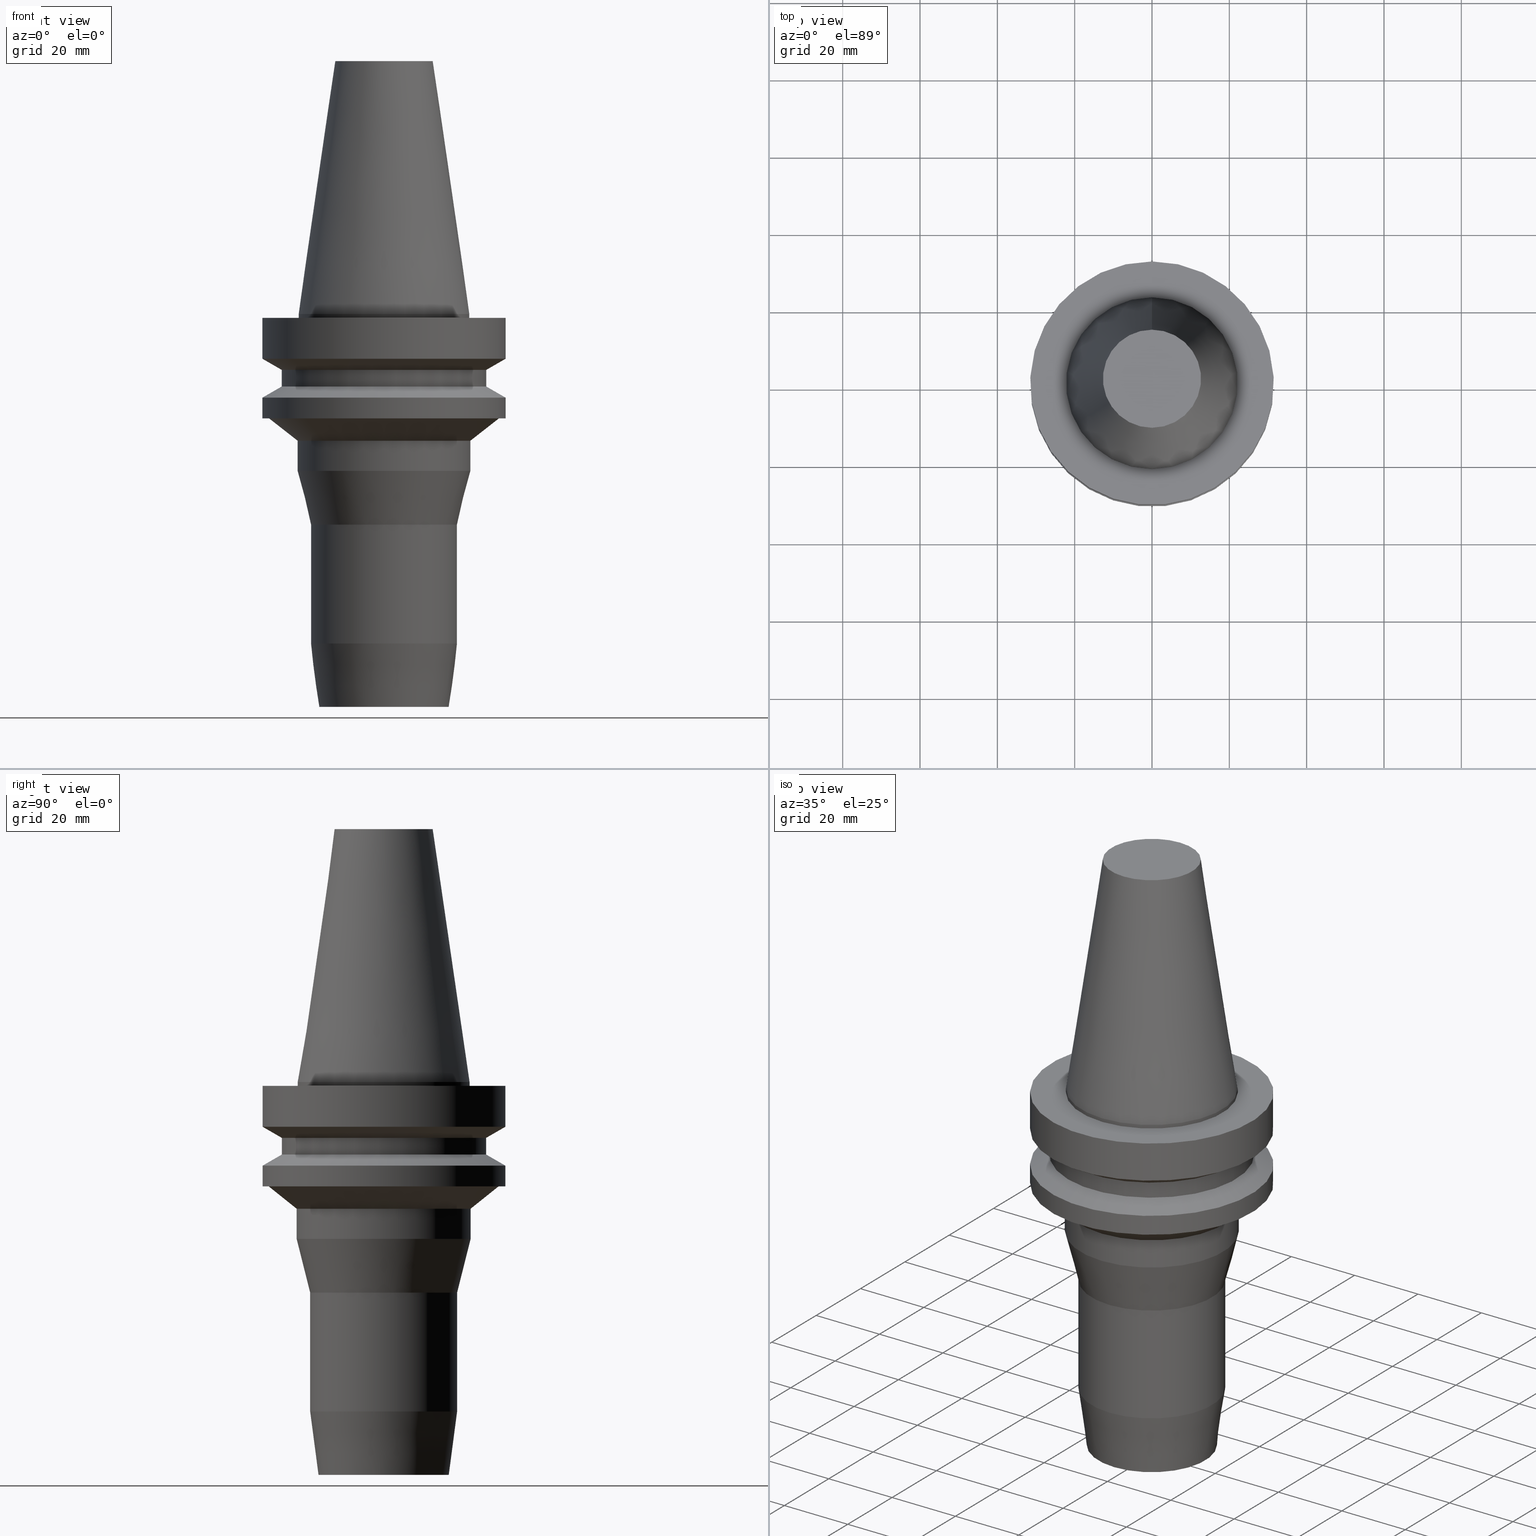
[diagram: canonical four-view strip — front | top / right | iso, engineering-drawing reading convention]
A machine part, canonical four-view strip (front | top / right | iso — engineering-drawing reading convention). The complete STEP part file that produces these views, byte-faithful:
ISO-10303-21;
HEADER;
FILE_DESCRIPTION((''),'1');
FILE_NAME('V:/90_\X2\53D65F9730C730FC30BF\X0\/00_\X2\6DE18DEF30C730FC30BF\X0\/ALL/BBT-BKUS\X2\FF76FF80FF9BFF78FF9E752852A05DE556F3\X0\201801/BBT40-HDC/BBT40-HDC.625-4.stp','2018-02-07T05:12:25',(''),(''),'Spatial Interop R21 SP3','Kubotek KeyCreator 2011 V10.0.2 (22737)',' ');
FILE_SCHEMA(('automotive_design'));
ENDSEC;
DATA;
#1=MECHANICAL_DESIGN_GEOMETRIC_PRESENTATION_REPRESENTATION(' ',(#10,#11,#12,#13,#14,#15,#16,#17,#18,#19,#20,#21,#22,#23,#24,#25,#26,#27,#28,#29,#30,#31,#32,#33,#34,#35,#36,#37,#38,#39,#40,#41),#6);
#2=PRODUCT_DEFINITION_CONTEXT('',#42,'design');
#3=APPLICATION_PROTOCOL_DEFINITION('INTERNATIONAL STANDARD','automotive_design',1994,#42);
#4=PRODUCT_CATEGORY_RELATIONSHIP('NONE','NONE',#43,#44);
#5=SHAPE_DEFINITION_REPRESENTATION(#45,#46);
#6= (GEOMETRIC_REPRESENTATION_CONTEXT(3)GLOBAL_UNCERTAINTY_ASSIGNED_CONTEXT((#49))GLOBAL_UNIT_ASSIGNED_CONTEXT((#51,#52,#53))REPRESENTATION_CONTEXT('NONE','WORKSPACE'));
#10=STYLED_ITEM('',(#55),#56);
#11=STYLED_ITEM('',(#57),#58);
#12=STYLED_ITEM('',(#59,#60),#61);
#13=STYLED_ITEM('',(#62,#63),#64);
#14=STYLED_ITEM('',(#65),#66);
#15=STYLED_ITEM('',(#67),#68);
#16=STYLED_ITEM('',(#69),#70);
#17=STYLED_ITEM('',(#71,#72),#73);
#18=STYLED_ITEM('',(#74,#75),#76);
#19=STYLED_ITEM('',(#77,#78),#79);
#20=STYLED_ITEM('',(#80,#81),#82);
#21=STYLED_ITEM('',(#83),#84);
#22=STYLED_ITEM('',(#85),#86);
#23=STYLED_ITEM('',(#87,#88),#89);
#24=STYLED_ITEM('',(#90,#91),#92);
#25=STYLED_ITEM('',(#93),#94);
#26=STYLED_ITEM('',(#95,#96),#97);
#27=STYLED_ITEM('',(#98),#99);
#28=STYLED_ITEM('',(#100,#101),#102);
#29=STYLED_ITEM('',(#103),#104);
#30=STYLED_ITEM('',(#105,#106),#107);
#31=STYLED_ITEM('',(#108),#109);
#32=STYLED_ITEM('',(#110),#111);
#33=STYLED_ITEM('',(#112,#113),#114);
#34=STYLED_ITEM('',(#115,#116),#117);
#35=STYLED_ITEM('',(#118,#119),#120);
#36=STYLED_ITEM('',(#121,#122),#123);
#37=STYLED_ITEM('',(#124),#125);
#38=STYLED_ITEM('',(#126),#127);
#39=STYLED_ITEM('',(#128,#129),#130);
#40=STYLED_ITEM('',(#131,#132),#133);
#41=STYLED_ITEM('',(#134),#135);
#42=APPLICATION_CONTEXT(' ');
#43=PRODUCT_CATEGORY('part','NONE');
#44=PRODUCT_RELATED_PRODUCT_CATEGORY('detail',' ',(#136));
#45=PRODUCT_DEFINITION_SHAPE('NONE','NONE',#137);
#46=ADVANCED_BREP_SHAPE_REPRESENTATION('Unnamed[1]',(#89,#138),#6);
#49=UNCERTAINTY_MEASURE_WITH_UNIT(LENGTH_MEASURE(1.0E-006),#51,'','');
#51= (CONVERSION_BASED_UNIT('MILLIMETRE',#141)LENGTH_UNIT()NAMED_UNIT(#144));
#52= (NAMED_UNIT(#146)PLANE_ANGLE_UNIT()SI_UNIT($,.RADIAN.));
#53= (NAMED_UNIT(#146)SOLID_ANGLE_UNIT()SI_UNIT($,.STERADIAN.));
#55=PRESENTATION_STYLE_ASSIGNMENT((#152));
#56=EDGE_CURVE('Unnamed[1]',#153,#153,#154,.T.);
#57=PRESENTATION_STYLE_ASSIGNMENT((#155));
#58=EDGE_CURVE('Unnamed[1]',#156,#156,#157,.T.);
#59=PRESENTATION_STYLE_ASSIGNMENT((#158));
#60=PRESENTATION_STYLE_ASSIGNMENT((#159));
#61=ADVANCED_FACE('Unnamed[1]',(#160,#161),#162,.T.);
#62=PRESENTATION_STYLE_ASSIGNMENT((#163));
#63=PRESENTATION_STYLE_ASSIGNMENT((#164));
#64=ADVANCED_FACE('Unnamed[1]',(#165),#166,.T.);
#65=PRESENTATION_STYLE_ASSIGNMENT((#167));
#66=EDGE_CURVE('Unnamed[1]',#168,#168,#169,.T.);
#67=PRESENTATION_STYLE_ASSIGNMENT((#170));
#68=EDGE_CURVE('Unnamed[1]',#171,#171,#172,.T.);
#69=PRESENTATION_STYLE_ASSIGNMENT((#173));
#70=EDGE_CURVE('Unnamed[1]',#174,#174,#175,.T.);
#71=PRESENTATION_STYLE_ASSIGNMENT((#176));
#72=PRESENTATION_STYLE_ASSIGNMENT((#177));
#73=ADVANCED_FACE('Unnamed[1]',(#178,#179),#180,.T.);
#74=PRESENTATION_STYLE_ASSIGNMENT((#181));
#75=PRESENTATION_STYLE_ASSIGNMENT((#182));
#76=ADVANCED_FACE('Unnamed[1]',(#183,#184),#185,.T.);
#77=PRESENTATION_STYLE_ASSIGNMENT((#186));
#78=PRESENTATION_STYLE_ASSIGNMENT((#187));
#79=ADVANCED_FACE('Unnamed[1]',(#188,#189),#190,.T.);
#80=PRESENTATION_STYLE_ASSIGNMENT((#191));
#81=PRESENTATION_STYLE_ASSIGNMENT((#192));
#82=ADVANCED_FACE('Unnamed[1]',(#193,#194),#195,.T.);
#83=PRESENTATION_STYLE_ASSIGNMENT((#196));
#84=EDGE_CURVE('Unnamed[1]',#197,#197,#198,.T.);
#85=PRESENTATION_STYLE_ASSIGNMENT((#199));
#86=EDGE_CURVE('Unnamed[1]',#200,#200,#201,.T.);
#87=PRESENTATION_STYLE_ASSIGNMENT((#202));
#88=PRESENTATION_STYLE_ASSIGNMENT((#203));
#89=MANIFOLD_SOLID_BREP('Unnamed[1]',#204);
#90=PRESENTATION_STYLE_ASSIGNMENT((#205));
#91=PRESENTATION_STYLE_ASSIGNMENT((#206));
#92=ADVANCED_FACE('Unnamed[1]',(#207,#208),#209,.T.);
#93=PRESENTATION_STYLE_ASSIGNMENT((#210));
#94=EDGE_CURVE('Unnamed[1]',#211,#211,#212,.T.);
#95=PRESENTATION_STYLE_ASSIGNMENT((#213));
#96=PRESENTATION_STYLE_ASSIGNMENT((#214));
#97=ADVANCED_FACE('Unnamed[1]',(#215,#216),#217,.T.);
#98=PRESENTATION_STYLE_ASSIGNMENT((#218));
#99=EDGE_CURVE('Unnamed[1]',#219,#219,#220,.T.);
#100=PRESENTATION_STYLE_ASSIGNMENT((#221));
#101=PRESENTATION_STYLE_ASSIGNMENT((#222));
#102=ADVANCED_FACE('Unnamed[1]',(#223,#224),#225,.T.);
#103=PRESENTATION_STYLE_ASSIGNMENT((#226));
#104=EDGE_CURVE('Unnamed[1]',#227,#227,#228,.T.);
#105=PRESENTATION_STYLE_ASSIGNMENT((#229));
#106=PRESENTATION_STYLE_ASSIGNMENT((#230));
#107=ADVANCED_FACE('Unnamed[1]',(#231,#232),#233,.T.);
#108=PRESENTATION_STYLE_ASSIGNMENT((#234));
#109=EDGE_CURVE('Unnamed[1]',#235,#235,#236,.T.);
#110=PRESENTATION_STYLE_ASSIGNMENT((#237));
#111=EDGE_CURVE('Unnamed[1]',#238,#238,#239,.T.);
#112=PRESENTATION_STYLE_ASSIGNMENT((#240));
#113=PRESENTATION_STYLE_ASSIGNMENT((#241));
#114=ADVANCED_FACE('Unnamed[1]',(#242,#243),#244,.T.);
#115=PRESENTATION_STYLE_ASSIGNMENT((#245));
#116=PRESENTATION_STYLE_ASSIGNMENT((#246));
#117=ADVANCED_FACE('Unnamed[1]',(#247,#248),#249,.T.);
#118=PRESENTATION_STYLE_ASSIGNMENT((#250));
#119=PRESENTATION_STYLE_ASSIGNMENT((#251));
#120=ADVANCED_FACE('Unnamed[1]',(#252,#253),#254,.T.);
#121=PRESENTATION_STYLE_ASSIGNMENT((#255));
#122=PRESENTATION_STYLE_ASSIGNMENT((#256));
#123=ADVANCED_FACE('Unnamed[1]',(#257),#258,.T.);
#124=PRESENTATION_STYLE_ASSIGNMENT((#259));
#125=EDGE_CURVE('Unnamed[1]',#260,#260,#261,.T.);
#126=PRESENTATION_STYLE_ASSIGNMENT((#262));
#127=EDGE_CURVE('Unnamed[1]',#263,#263,#264,.T.);
#128=PRESENTATION_STYLE_ASSIGNMENT((#265));
#129=PRESENTATION_STYLE_ASSIGNMENT((#266));
#130=ADVANCED_FACE('Unnamed[1]',(#267,#268),#269,.T.);
#131=PRESENTATION_STYLE_ASSIGNMENT((#270));
#132=PRESENTATION_STYLE_ASSIGNMENT((#271));
#133=ADVANCED_FACE('Unnamed[1]',(#272,#273),#274,.T.);
#134=PRESENTATION_STYLE_ASSIGNMENT((#275));
#135=EDGE_CURVE('Unnamed[1]',#276,#276,#277,.T.);
#136=PRODUCT('Unnamed[1]','Unnamed[1]','PART-Unnamed[1]-DESC',(#278));
#137=PRODUCT_DEFINITION('NONE','NONE',#279,#2);
#138=AXIS2_PLACEMENT_3D('',#280,#281,#282);
#141=LENGTH_MEASURE_WITH_UNIT(LENGTH_MEASURE(1.0),#283);
#144=DIMENSIONAL_EXPONENTS(1.0,0.0,0.0,0.0,0.0,0.0,0.0);
#146=DIMENSIONAL_EXPONENTS(0.0,0.0,0.0,0.0,0.0,0.0,0.0);
#152=CURVE_STYLE('',#284,POSITIVE_LENGTH_MEASURE(1000.0),#285);
#153=VERTEX_POINT('',#286);
#154=CIRCLE('',#287,26.4999999999994);
#155=CURVE_STYLE('',#288,POSITIVE_LENGTH_MEASURE(1000.0),#289);
#156=VERTEX_POINT('',#290);
#157=CIRCLE('',#291,31.5000000000006);
#158=SURFACE_STYLE_USAGE(.BOTH.,#292);
#159=CURVE_STYLE('',#293,POSITIVE_LENGTH_MEASURE(1000.0),#294);
#160=FACE_BOUND('',#295,.T.);
#161=FACE_BOUND('',#296,.T.);
#162=CYLINDRICAL_SURFACE('',#297,26.4999999999997);
#163=SURFACE_STYLE_USAGE(.BOTH.,#298);
#164=CURVE_STYLE('',#299,POSITIVE_LENGTH_MEASURE(1000.0),#300);
#165=FACE_OUTER_BOUND('',#301,.T.);
#166=PLANE('',#302);
#167=CURVE_STYLE('',#303,POSITIVE_LENGTH_MEASURE(1000.0),#304);
#168=VERTEX_POINT('',#305);
#169=CIRCLE('',#306,22.225);
#170=CURVE_STYLE('',#307,POSITIVE_LENGTH_MEASURE(1000.0),#308);
#171=VERTEX_POINT('',#309);
#172=CIRCLE('',#310,31.5000000000003);
#173=CURVE_STYLE('',#311,POSITIVE_LENGTH_MEASURE(1000.0),#312);
#174=VERTEX_POINT('',#313);
#175=CIRCLE('',#314,19.0000000000008);
#176=SURFACE_STYLE_USAGE(.BOTH.,#315);
#177=CURVE_STYLE('',#316,POSITIVE_LENGTH_MEASURE(1000.0),#317);
#178=FACE_BOUND('',#318,.T.);
#179=FACE_BOUND('',#319,.T.);
#180=CYLINDRICAL_SURFACE('',#320,31.5000000000005);
#181=SURFACE_STYLE_USAGE(.BOTH.,#321);
#182=CURVE_STYLE('',#322,POSITIVE_LENGTH_MEASURE(1000.0),#323);
#183=FACE_BOUND('',#324,.T.);
#184=FACE_BOUND('',#325,.T.);
#185=CYLINDRICAL_SURFACE('',#326,19.000000000003);
#186=SURFACE_STYLE_USAGE(.BOTH.,#327);
#187=CURVE_STYLE('',#328,POSITIVE_LENGTH_MEASURE(1000.0),#329);
#188=FACE_BOUND('',#330,.T.);
#189=FACE_OUTER_BOUND('',#331,.T.);
#190=PLANE('',#332);
#191=SURFACE_STYLE_USAGE(.BOTH.,#333);
#192=CURVE_STYLE('',#334,POSITIVE_LENGTH_MEASURE(1000.0),#335);
#193=FACE_BOUND('',#336,.T.);
#194=FACE_BOUND('',#337,.T.);
#195=CONICAL_SURFACE('',#338,20.7500000000019,0.246318137964247);
#196=CURVE_STYLE('',#339,POSITIVE_LENGTH_MEASURE(1000.0),#340);
#197=VERTEX_POINT('',#341);
#198=CIRCLE('',#342,22.225);
#199=CURVE_STYLE('',#343,POSITIVE_LENGTH_MEASURE(1000.0),#344);
#200=VERTEX_POINT('',#345);
#201=CIRCLE('',#346,16.8455306051989);
#202=SURFACE_STYLE_USAGE(.BOTH.,#347);
#203=CURVE_STYLE('',#348,POSITIVE_LENGTH_MEASURE(1000.0),#349);
#204=CLOSED_SHELL('',(#64,#130,#92,#107,#114,#117,#61,#102,#73,#79,#120,#133,#82,#76,#97,#123));
#205=SURFACE_STYLE_USAGE(.BOTH.,#350);
#206=CURVE_STYLE('',#351,POSITIVE_LENGTH_MEASURE(1000.0),#352);
#207=FACE_BOUND('',#353,.T.);
#208=FACE_BOUND('',#354,.T.);
#209=CYLINDRICAL_SURFACE('',#355,22.225);
#210=CURVE_STYLE('',#356,POSITIVE_LENGTH_MEASURE(1000.0),#357);
#211=VERTEX_POINT('',#358);
#212=CIRCLE('',#359,29.7143593539462);
#213=SURFACE_STYLE_USAGE(.BOTH.,#360);
#214=CURVE_STYLE('',#361,POSITIVE_LENGTH_MEASURE(1000.0),#362);
#215=FACE_BOUND('',#363,.T.);
#216=FACE_BOUND('',#364,.T.);
#217=CONICAL_SURFACE('',#365,17.9227653025998,0.130899693899571);
#218=CURVE_STYLE('',#366,POSITIVE_LENGTH_MEASURE(1000.0),#367);
#219=VERTEX_POINT('',#368);
#220=CIRCLE('',#369,26.4999999999999);
#221=SURFACE_STYLE_USAGE(.BOTH.,#370);
#222=CURVE_STYLE('',#371,POSITIVE_LENGTH_MEASURE(1000.0),#372);
#223=FACE_BOUND('',#373,.T.);
#224=FACE_BOUND('',#374,.T.);
#225=CONICAL_SURFACE('',#375,29.0000000000003,1.04719755119651);
#226=CURVE_STYLE('',#376,POSITIVE_LENGTH_MEASURE(1000.0),#377);
#227=VERTEX_POINT('',#378);
#228=CIRCLE('',#379,19.0000000000052);
#229=SURFACE_STYLE_USAGE(.BOTH.,#380);
#230=CURVE_STYLE('',#381,POSITIVE_LENGTH_MEASURE(1000.0),#382);
#231=FACE_OUTER_BOUND('',#383,.T.);
#232=FACE_BOUND('',#384,.T.);
#233=PLANE('',#385);
#234=CURVE_STYLE('',#386,POSITIVE_LENGTH_MEASURE(1000.0),#387);
#235=VERTEX_POINT('',#388);
#236=CIRCLE('',#389,31.5000000000003);
#237=CURVE_STYLE('',#390,POSITIVE_LENGTH_MEASURE(1000.0),#391);
#238=VERTEX_POINT('',#392);
#239=CIRCLE('',#393,22.499999999999);
#240=SURFACE_STYLE_USAGE(.BOTH.,#394);
#241=CURVE_STYLE('',#395,POSITIVE_LENGTH_MEASURE(1000.0),#396);
#242=FACE_BOUND('',#397,.T.);
#243=FACE_BOUND('',#398,.T.);
#244=CYLINDRICAL_SURFACE('',#399,31.5);
#245=SURFACE_STYLE_USAGE(.BOTH.,#400);
#246=CURVE_STYLE('',#401,POSITIVE_LENGTH_MEASURE(1000.0),#402);
#247=FACE_BOUND('',#403,.T.);
#248=FACE_BOUND('',#404,.T.);
#249=CONICAL_SURFACE('',#405,28.9999999999998,1.04719755119657);
#250=SURFACE_STYLE_USAGE(.BOTH.,#406);
#251=CURVE_STYLE('',#407,POSITIVE_LENGTH_MEASURE(1000.0),#408);
#252=FACE_BOUND('',#409,.T.);
#253=FACE_BOUND('',#410,.T.);
#254=CONICAL_SURFACE('',#411,26.1071796769726,0.895885082770145);
#255=SURFACE_STYLE_USAGE(.BOTH.,#412);
#256=CURVE_STYLE('',#413,POSITIVE_LENGTH_MEASURE(1000.0),#414);
#257=FACE_OUTER_BOUND('',#415,.T.);
#258=PLANE('',#416);
#259=CURVE_STYLE('',#417,POSITIVE_LENGTH_MEASURE(1000.0),#418);
#260=VERTEX_POINT('',#419);
#261=CIRCLE('',#420,12.6875000000001);
#262=CURVE_STYLE('',#421,POSITIVE_LENGTH_MEASURE(1000.0),#422);
#263=VERTEX_POINT('',#423);
#264=CIRCLE('',#424,31.4999999999996);
#265=SURFACE_STYLE_USAGE(.BOTH.,#425);
#266=CURVE_STYLE('',#426,POSITIVE_LENGTH_MEASURE(1000.0),#427);
#267=FACE_BOUND('',#428,.T.);
#268=FACE_BOUND('',#429,.T.);
#269=CONICAL_SURFACE('',#430,17.45625,0.144812498238936);
#270=SURFACE_STYLE_USAGE(.BOTH.,#431);
#271=CURVE_STYLE('',#432,POSITIVE_LENGTH_MEASURE(1000.0),#433);
#272=FACE_BOUND('',#434,.T.);
#273=FACE_BOUND('',#435,.T.);
#274=CYLINDRICAL_SURFACE('',#436,22.4999999999988);
#275=CURVE_STYLE('',#437,POSITIVE_LENGTH_MEASURE(1000.0),#438);
#276=VERTEX_POINT('',#439);
#277=CIRCLE('',#440,22.4999999999985);
#278=PRODUCT_CONTEXT('',#42,'mechanical');
#279=PRODUCT_DEFINITION_FORMATION_WITH_SPECIFIED_SOURCE(' ','NONE',#136,.NOT_KNOWN.);
#280=CARTESIAN_POINT('',(0.0,0.0,0.0));
#281=DIRECTION('',(0.0,0.0,1.0));
#282=DIRECTION('',(1.0,0.0,0.0));
#283= (NAMED_UNIT(#144)LENGTH_UNIT()SI_UNIT(.MILLI.,.METRE.));
#284=DRAUGHTING_PRE_DEFINED_CURVE_FONT('continuous');
#285=COLOUR_RGB('',0.0,1.0,0.0);
#286=CARTESIAN_POINT('',(8.8494551369045E-016,26.4999999999995,-14.4522569986152));
#287=AXIS2_PLACEMENT_3D('',#442,#443,#444);
#288=DRAUGHTING_PRE_DEFINED_CURVE_FONT('continuous');
#289=COLOUR_RGB('',0.0,1.0,0.0);
#290=CARTESIAN_POINT('',(1.32473071268174E-015,31.5000000000007,-21.6344943473346));
#291=AXIS2_PLACEMENT_3D('',#445,#446,#447);
#292=SURFACE_SIDE_STYLE('',(#448));
#293=DRAUGHTING_PRE_DEFINED_CURVE_FONT('continuous');
#294=COLOUR_RGB('',0.0,1.0,0.0);
#295=EDGE_LOOP('',(#449));
#296=EDGE_LOOP('',(#450));
#297=AXIS2_PLACEMENT_3D('',#451,#452,#453);
#298=SURFACE_SIDE_STYLE('',(#454));
#299=DRAUGHTING_PRE_DEFINED_CURVE_FONT('continuous');
#300=COLOUR_RGB('',0.0,1.0,0.0);
#301=EDGE_LOOP('',(#455));
#302=AXIS2_PLACEMENT_3D('',#456,#457,#458);
#303=DRAUGHTING_PRE_DEFINED_CURVE_FONT('continuous');
#304=COLOUR_RGB('',0.0,1.0,0.0);
#305=CARTESIAN_POINT('',(1.71319921032766E-029,22.2250000000001,-2.8153873565375E-013));
#306=AXIS2_PLACEMENT_3D('',#459,#460,#461);
#307=DRAUGHTING_PRE_DEFINED_CURVE_FONT('continuous');
#308=COLOUR_RGB('',0.0,1.0,0.0);
#309=CARTESIAN_POINT('',(1.65327317884891E-015,31.5000000000004,-26.9999999999998));
#310=AXIS2_PLACEMENT_3D('',#462,#463,#464);
#311=DRAUGHTING_PRE_DEFINED_CURVE_FONT('continuous');
#312=COLOUR_RGB('',0.0,1.0,0.0);
#313=CARTESIAN_POINT('',(5.219149532397E-015,19.0000000000009,-85.2351802336931));
#314=AXIS2_PLACEMENT_3D('',#465,#466,#467);
#315=SURFACE_SIDE_STYLE('',(#468));
#316=DRAUGHTING_PRE_DEFINED_CURVE_FONT('continuous');
#317=COLOUR_RGB('',0.0,1.0,0.0);
#318=EDGE_LOOP('',(#469));
#319=EDGE_LOOP('',(#470));
#320=AXIS2_PLACEMENT_3D('',#471,#472,#473);
#321=SURFACE_SIDE_STYLE('',(#474));
#322=DRAUGHTING_PRE_DEFINED_CURVE_FONT('continuous');
#323=COLOUR_RGB('',0.0,1.0,0.0);
#324=EDGE_LOOP('',(#475));
#325=EDGE_LOOP('',(#476));
#326=AXIS2_PLACEMENT_3D('',#477,#478,#479);
#327=SURFACE_SIDE_STYLE('',(#480));
#328=DRAUGHTING_PRE_DEFINED_CURVE_FONT('continuous');
#329=COLOUR_RGB('',0.0,1.0,0.0);
#330=EDGE_LOOP('',(#481));
#331=EDGE_LOOP('',(#482));
#332=AXIS2_PLACEMENT_3D('',#483,#484,#485);
#333=SURFACE_SIDE_STYLE('',(#486));
#334=DRAUGHTING_PRE_DEFINED_CURVE_FONT('continuous');
#335=COLOUR_RGB('',0.0,1.0,0.0);
#336=EDGE_LOOP('',(#487));
#337=EDGE_LOOP('',(#488));
#338=AXIS2_PLACEMENT_3D('',#489,#490,#491);
#339=DRAUGHTING_PRE_DEFINED_CURVE_FONT('continuous');
#340=COLOUR_RGB('',0.0,1.0,0.0);
#341=CARTESIAN_POINT('',(6.12323399573622E-017,22.2250000000001,-0.999999999999912));
#342=AXIS2_PLACEMENT_3D('',#492,#493,#494);
#343=DRAUGHTING_PRE_DEFINED_CURVE_FONT('continuous');
#344=COLOUR_RGB('',0.0,1.0,0.0);
#345=CARTESIAN_POINT('',(6.2212057396686E-015,16.845530605199,-101.600000000001));
#346=AXIS2_PLACEMENT_3D('',#495,#496,#497);
#347=SURFACE_SIDE_STYLE('',(#498));
#348=DRAUGHTING_PRE_DEFINED_CURVE_FONT('continuous');
#349=COLOUR_RGB('',0.0,1.0,0.0);
#350=SURFACE_SIDE_STYLE('',(#499));
#351=DRAUGHTING_PRE_DEFINED_CURVE_FONT('continuous');
#352=COLOUR_RGB('',0.0,1.0,0.0);
#353=EDGE_LOOP('',(#500));
#354=EDGE_LOOP('',(#501));
#355=AXIS2_PLACEMENT_3D('',#502,#503,#504);
#356=DRAUGHTING_PRE_DEFINED_CURVE_FONT('continuous');
#357=COLOUR_RGB('',0.0,1.0,0.0);
#358=CARTESIAN_POINT('',(1.65327317884891E-015,29.7143593539463,-26.9999999999998));
#359=AXIS2_PLACEMENT_3D('',#505,#506,#507);
#360=SURFACE_SIDE_STYLE('',(#508));
#361=DRAUGHTING_PRE_DEFINED_CURVE_FONT('continuous');
#362=COLOUR_RGB('',0.0,1.0,0.0);
#363=EDGE_LOOP('',(#509));
#364=EDGE_LOOP('',(#510));
#365=AXIS2_PLACEMENT_3D('',#511,#512,#513);
#366=DRAUGHTING_PRE_DEFINED_CURVE_FONT('continuous');
#367=COLOUR_RGB('',0.0,1.0,0.0);
#368=CARTESIAN_POINT('',(1.1479681728942E-015,26.5,-18.7477430013855));
#369=AXIS2_PLACEMENT_3D('',#514,#515,#516);
#370=SURFACE_SIDE_STYLE('',(#517));
#371=DRAUGHTING_PRE_DEFINED_CURVE_FONT('continuous');
#372=COLOUR_RGB('',0.0,1.0,0.0);
#373=EDGE_LOOP('',(#518));
#374=EDGE_LOOP('',(#519));
#375=AXIS2_PLACEMENT_3D('',#520,#521,#522);
#376=DRAUGHTING_PRE_DEFINED_CURVE_FONT('continuous');
#377=COLOUR_RGB('',0.0,1.0,0.0);
#378=CARTESIAN_POINT('',(3.3363421698747E-015,19.0000000000053,-54.4866025403829));
#379=AXIS2_PLACEMENT_3D('',#523,#524,#525);
#380=SURFACE_SIDE_STYLE('',(#526));
#381=DRAUGHTING_PRE_DEFINED_CURVE_FONT('continuous');
#382=COLOUR_RGB('',0.0,1.0,0.0);
#383=EDGE_LOOP('',(#527));
#384=EDGE_LOOP('',(#528));
#385=AXIS2_PLACEMENT_3D('',#529,#530,#531);
#386=DRAUGHTING_PRE_DEFINED_CURVE_FONT('continuous');
#387=COLOUR_RGB('',0.0,1.0,0.0);
#388=CARTESIAN_POINT('',(7.08182973902924E-016,31.5000000000004,-11.5655056526664));
#389=AXIS2_PLACEMENT_3D('',#532,#533,#534);
#390=DRAUGHTING_PRE_DEFINED_CURVE_FONT('continuous');
#391=COLOUR_RGB('',0.0,1.0,0.0);
#392=CARTESIAN_POINT('',(2.00679825842386E-015,22.4999999999991,-32.7735026918956));
#393=AXIS2_PLACEMENT_3D('',#535,#536,#537);
#394=SURFACE_SIDE_STYLE('',(#538));
#395=DRAUGHTING_PRE_DEFINED_CURVE_FONT('continuous');
#396=COLOUR_RGB('',0.0,1.0,0.0);
#397=EDGE_LOOP('',(#539));
#398=EDGE_LOOP('',(#540));
#399=AXIS2_PLACEMENT_3D('',#541,#542,#543);
#400=SURFACE_SIDE_STYLE('',(#544));
#401=DRAUGHTING_PRE_DEFINED_CURVE_FONT('continuous');
#402=COLOUR_RGB('',0.0,1.0,0.0);
#403=EDGE_LOOP('',(#545));
#404=EDGE_LOOP('',(#546));
#405=AXIS2_PLACEMENT_3D('',#547,#548,#549);
#406=SURFACE_SIDE_STYLE('',(#550));
#407=DRAUGHTING_PRE_DEFINED_CURVE_FONT('continuous');
#408=COLOUR_RGB('',0.0,1.0,0.0);
#409=EDGE_LOOP('',(#551));
#410=EDGE_LOOP('',(#552));
#411=AXIS2_PLACEMENT_3D('',#553,#554,#555);
#412=SURFACE_SIDE_STYLE('',(#556));
#413=DRAUGHTING_PRE_DEFINED_CURVE_FONT('continuous');
#414=COLOUR_RGB('',0.0,1.0,0.0);
#415=EDGE_LOOP('',(#557));
#416=AXIS2_PLACEMENT_3D('',#558,#559,#560);
#417=DRAUGHTING_PRE_DEFINED_CURVE_FONT('continuous');
#418=COLOUR_RGB('',0.0,1.0,0.0);
#419=CARTESIAN_POINT('',(-4.00459503321185E-015,12.6875000000002,65.4000000000001));
#420=AXIS2_PLACEMENT_3D('',#561,#562,#563);
#421=DRAUGHTING_PRE_DEFINED_CURVE_FONT('continuous');
#422=COLOUR_RGB('',0.0,1.0,0.0);
#423=CARTESIAN_POINT('',(6.12323399573568E-017,31.4999999999997,-0.999999999999825));
#424=AXIS2_PLACEMENT_3D('',#564,#565,#566);
#425=SURFACE_SIDE_STYLE('',(#567));
#426=DRAUGHTING_PRE_DEFINED_CURVE_FONT('continuous');
#427=COLOUR_RGB('',0.0,1.0,0.0);
#428=EDGE_LOOP('',(#568));
#429=EDGE_LOOP('',(#569));
#430=AXIS2_PLACEMENT_3D('',#570,#571,#572);
#431=SURFACE_SIDE_STYLE('',(#573));
#432=DRAUGHTING_PRE_DEFINED_CURVE_FONT('continuous');
#433=COLOUR_RGB('',0.0,1.0,0.0);
#434=EDGE_LOOP('',(#574));
#435=EDGE_LOOP('',(#575));
#436=AXIS2_PLACEMENT_3D('',#576,#577,#578);
#437=DRAUGHTING_PRE_DEFINED_CURVE_FONT('continuous');
#438=COLOUR_RGB('',0.0,1.0,0.0);
#439=CARTESIAN_POINT('',(2.48394354653096E-015,22.4999999999986,-40.565876598222));
#440=AXIS2_PLACEMENT_3D('',#579,#580,#581);
#442=CARTESIAN_POINT('',(8.8494551369045E-016,8.70698910273809E-014,-14.4522569986152));
#443=DIRECTION('',(6.12323399573676E-017,1.22464679914767E-016,-1.0));
#444=DIRECTION('',(-1.23259516440786E-032,1.0,1.22464679914767E-016));
#445=CARTESIAN_POINT('',(1.32473071268174E-015,8.79494614253635E-014,-21.6344943473346));
#446=DIRECTION('',(6.12323399573677E-017,1.22464679914768E-016,-1.0));
#447=DIRECTION('',(-1.23259516440781E-032,1.0,1.22464679914768E-016));
#448=SURFACE_STYLE_FILL_AREA(#582);
#449=ORIENTED_EDGE('',*,*,#99,.F.);
#450=ORIENTED_EDGE('',*,*,#56,.T.);
#451=CARTESIAN_POINT('',(1.01645684329232E-015,8.73329136865847E-014,-16.6000000000004));
#452=DIRECTION('',(6.12323399573677E-017,1.22464679914766E-016,-1.0));
#453=DIRECTION('',(-1.23259516440785E-032,1.0,1.22464679914766E-016));
#454=SURFACE_STYLE_FILL_AREA(#583);
#455=ORIENTED_EDGE('',*,*,#125,.F.);
#456=CARTESIAN_POINT('',(-4.00459503321185E-015,6.34375000000014,65.4000000000001));
#457=DIRECTION('',(-6.12323399573677E-017,9.97602686800683E-016,1.0));
#458=DIRECTION('',(-5.62583941297938E-032,-1.0,9.97602686800683E-016));
#459=CARTESIAN_POINT('',(1.74032777401202E-029,8.53E-014,-2.8421709430404E-013));
#460=DIRECTION('',(6.12323399573677E-017,1.22464679914758E-016,-1.0));
#461=DIRECTION('',(-1.23259516440816E-032,1.0,1.22464679914758E-016));
#462=CARTESIAN_POINT('',(1.65327317884891E-015,8.86065463576978E-014,-26.9999999999998));
#463=DIRECTION('',(6.12323399573677E-017,1.22464679914769E-016,-1.0));
#464=DIRECTION('',(-1.23259516440782E-032,1.0,1.22464679914769E-016));
#465=CARTESIAN_POINT('',(5.219149532397E-015,9.5738299064794E-014,-85.2351802336931));
#466=DIRECTION('',(6.12323399573677E-017,1.22464679914745E-016,-1.0));
#467=DIRECTION('',(-1.23259516440778E-032,1.0,1.22464679914745E-016));
#468=SURFACE_STYLE_FILL_AREA(#584);
#469=ORIENTED_EDGE('',*,*,#68,.F.);
#470=ORIENTED_EDGE('',*,*,#58,.T.);
#471=CARTESIAN_POINT('',(1.48900194576533E-015,8.82780038915307E-014,-24.3172471736672));
#472=DIRECTION('',(6.12323399573677E-017,1.22464679914768E-016,-1.0));
#473=DIRECTION('',(-1.23259516440781E-032,1.0,1.22464679914768E-016));
#474=SURFACE_STYLE_FILL_AREA(#585);
#475=ORIENTED_EDGE('',*,*,#70,.F.);
#476=ORIENTED_EDGE('',*,*,#104,.T.);
#477=CARTESIAN_POINT('',(4.27774585113585E-015,9.38554917022717E-014,-69.860891387038));
#478=DIRECTION('',(6.12323399573677E-017,1.2246467991473E-016,-1.0));
#479=DIRECTION('',(-1.23259516440764E-032,1.0,1.2246467991473E-016));
#480=SURFACE_STYLE_FILL_AREA(#586);
#481=ORIENTED_EDGE('',*,*,#94,.F.);
#482=ORIENTED_EDGE('',*,*,#68,.T.);
#483=CARTESIAN_POINT('',(1.65327317884891E-015,30.6071796769733,-26.9999999999998));
#484=DIRECTION('',(6.12323399573677E-017,6.09126980313703E-015,-1.0));
#485=DIRECTION('',(-3.77809856088504E-031,1.0,6.09126980313703E-015));
#486=SURFACE_STYLE_FILL_AREA(#587);
#487=ORIENTED_EDGE('',*,*,#104,.F.);
#488=ORIENTED_EDGE('',*,*,#135,.T.);
#489=CARTESIAN_POINT('',(2.91014285820283E-015,9.11202857164057E-014,-47.5262395693025));
#490=DIRECTION('',(-6.12323399573677E-017,-1.22464679914766E-016,1.0));
#491=DIRECTION('',(-1.23259516440772E-032,1.0,1.22464679914766E-016));
#492=CARTESIAN_POINT('',(6.12323399573624E-017,8.54224646799147E-014,-0.999999999999915));
#493=DIRECTION('',(6.12323399573677E-017,1.22464679914758E-016,-1.0));
#494=DIRECTION('',(-1.23259516440816E-032,1.0,1.22464679914758E-016));
#495=CARTESIAN_POINT('',(6.2212057396686E-015,9.77424114793372E-014,-101.600000000001));
#496=DIRECTION('',(6.12323399573677E-017,1.22464679914689E-016,-1.0));
#497=DIRECTION('',(-1.23259516440779E-032,1.0,1.22464679914689E-016));
#498=SURFACE_STYLE_FILL_AREA(#588);
#499=SURFACE_STYLE_FILL_AREA(#589);
#500=ORIENTED_EDGE('',*,*,#84,.F.);
#501=ORIENTED_EDGE('',*,*,#66,.T.);
#502=CARTESIAN_POINT('',(3.06161699786899E-017,8.53612323399574E-014,-0.500000000000099));
#503=DIRECTION('',(6.12323399573677E-017,1.22464679914758E-016,-1.0));
#504=DIRECTION('',(-1.23259516440816E-032,1.0,1.22464679914758E-016));
#505=CARTESIAN_POINT('',(1.65327317884891E-015,8.86065463576978E-014,-26.9999999999998));
#506=DIRECTION('',(6.12323399573677E-017,1.22464679914784E-016,-1.0));
#507=DIRECTION('',(-1.23259516440804E-032,1.0,1.22464679914784E-016));
#508=SURFACE_STYLE_FILL_AREA(#590);
#509=ORIENTED_EDGE('',*,*,#86,.F.);
#510=ORIENTED_EDGE('',*,*,#70,.T.);
#511=CARTESIAN_POINT('',(5.7201776360328E-015,9.67403552720656E-014,-93.4175901168469));
#512=DIRECTION('',(-6.12323399573677E-017,-1.22464679914764E-016,1.0));
#513=DIRECTION('',(-1.23259516440804E-032,1.0,1.22464679914764E-016));
#514=CARTESIAN_POINT('',(1.1479681728942E-015,8.75959363457884E-014,-18.7477430013855));
#515=DIRECTION('',(6.12323399573677E-017,1.22464679914764E-016,-1.0));
#516=DIRECTION('',(-1.23259516440783E-032,1.0,1.22464679914764E-016));
#517=SURFACE_STYLE_FILL_AREA(#591);
#518=ORIENTED_EDGE('',*,*,#58,.F.);
#519=ORIENTED_EDGE('',*,*,#99,.T.);
#520=CARTESIAN_POINT('',(1.23634944278797E-015,8.77726988855759E-014,-20.1911186743601));
#521=DIRECTION('',(6.12323399573677E-017,1.2246467991471E-016,-1.0));
#522=DIRECTION('',(-1.23259516440782E-032,1.0,1.2246467991471E-016));
#523=CARTESIAN_POINT('',(3.3363421698747E-015,9.19726843397494E-014,-54.4866025403829));
#524=DIRECTION('',(6.12323399573677E-017,1.22464679914716E-016,-1.0));
#525=DIRECTION('',(-1.23259516440796E-032,1.0,1.22464679914716E-016));
#526=SURFACE_STYLE_FILL_AREA(#592);
#527=ORIENTED_EDGE('',*,*,#127,.F.);
#528=ORIENTED_EDGE('',*,*,#84,.T.);
#529=CARTESIAN_POINT('',(6.12323399573595E-017,26.8624999999999,-0.999999999999869));
#530=DIRECTION('',(-6.12323399573677E-017,-9.35138060429241E-015,1.0));
#531=DIRECTION('',(5.77434068963536E-031,-1.0,-9.35138060429241E-015));
#532=CARTESIAN_POINT('',(7.08182973902924E-016,8.67163659478059E-014,-11.5655056526664));
#533=DIRECTION('',(6.12323399573677E-017,1.22464679914769E-016,-1.0));
#534=DIRECTION('',(-1.23259516440782E-032,1.0,1.22464679914769E-016));
#535=CARTESIAN_POINT('',(2.00679825842386E-015,8.93135965168477E-014,-32.7735026918956));
#536=DIRECTION('',(6.12323399573677E-017,1.22464679914734E-016,-1.0));
#537=DIRECTION('',(-1.23259516440788E-032,1.0,1.22464679914734E-016));
#538=SURFACE_STYLE_FILL_AREA(#593);
#539=ORIENTED_EDGE('',*,*,#109,.F.);
#540=ORIENTED_EDGE('',*,*,#127,.T.);
#541=CARTESIAN_POINT('',(3.84707656930141E-016,8.60694153138603E-014,-6.28275282633309));
#542=DIRECTION('',(6.12323399573677E-017,1.2246467991477E-016,-1.0));
#543=DIRECTION('',(-1.23259516440783E-032,1.0,1.2246467991477E-016));
#544=SURFACE_STYLE_FILL_AREA(#594);
#545=ORIENTED_EDGE('',*,*,#56,.F.);
#546=ORIENTED_EDGE('',*,*,#109,.T.);
#547=CARTESIAN_POINT('',(7.96564243796687E-016,8.68931284875934E-014,-13.0088813256408));
#548=DIRECTION('',(-6.12323399573677E-017,-1.22464679914712E-016,1.0));
#549=DIRECTION('',(-1.23259516440784E-032,1.0,1.22464679914712E-016));
#550=SURFACE_STYLE_FILL_AREA(#595);
#551=ORIENTED_EDGE('',*,*,#111,.F.);
#552=ORIENTED_EDGE('',*,*,#94,.T.);
#553=CARTESIAN_POINT('',(1.83003571863638E-015,8.89600714372728E-014,-29.8867513459477));
#554=DIRECTION('',(-6.12323399573677E-017,-1.22464679914763E-016,1.0));
#555=DIRECTION('',(-1.23259516440763E-032,1.0,1.22464679914763E-016));
#556=SURFACE_STYLE_FILL_AREA(#596);
#557=ORIENTED_EDGE('',*,*,#86,.T.);
#558=CARTESIAN_POINT('',(6.22120573966861E-015,8.42276530259953,-101.600000000001));
#559=DIRECTION('',(6.12323399573677E-017,2.37432066649048E-014,-1.0));
#560=DIRECTION('',(-1.45867925491426E-030,1.0,2.37432066649048E-014));
#561=CARTESIAN_POINT('',(-4.00459503321185E-015,7.72908099335763E-014,65.4000000000001));
#562=DIRECTION('',(6.12323399573677E-017,1.22464679914695E-016,-1.0));
#563=DIRECTION('',(-1.23259516440782E-032,1.0,1.22464679914695E-016));
#564=CARTESIAN_POINT('',(6.12323399573572E-017,8.54224646799147E-014,-0.999999999999829));
#565=DIRECTION('',(6.12323399573677E-017,1.22464679914772E-016,-1.0));
#566=DIRECTION('',(-1.23259516440785E-032,1.0,1.22464679914772E-016));
#567=SURFACE_STYLE_FILL_AREA(#597);
#568=ORIENTED_EDGE('',*,*,#66,.F.);
#569=ORIENTED_EDGE('',*,*,#125,.T.);
#570=CARTESIAN_POINT('',(-2.00229751660592E-015,8.12954049667882E-014,32.6999999999999));
#571=DIRECTION('',(6.12323399573677E-017,1.22464679914735E-016,-1.0));
#572=DIRECTION('',(-1.23259516440803E-032,1.0,1.22464679914735E-016));
#573=SURFACE_STYLE_FILL_AREA(#598);
#574=ORIENTED_EDGE('',*,*,#135,.F.);
#575=ORIENTED_EDGE('',*,*,#111,.T.);
#576=CARTESIAN_POINT('',(2.24537090247741E-015,8.97907418049548E-014,-36.6696896450588));
#577=DIRECTION('',(6.12323399573677E-017,1.22464679914736E-016,-1.0));
#578=DIRECTION('',(-1.2325951644079E-032,1.0,1.22464679914736E-016));
#579=CARTESIAN_POINT('',(2.48394354653096E-015,9.02678870930619E-014,-40.565876598222));
#580=DIRECTION('',(6.12323399573677E-017,1.22464679914737E-016,-1.0));
#581=DIRECTION('',(-1.23259516440791E-032,1.0,1.22464679914737E-016));
#582=FILL_AREA_STYLE('',(#599));
#583=FILL_AREA_STYLE('',(#600));
#584=FILL_AREA_STYLE('',(#601));
#585=FILL_AREA_STYLE('',(#602));
#586=FILL_AREA_STYLE('',(#603));
#587=FILL_AREA_STYLE('',(#604));
#588=FILL_AREA_STYLE('',(#605));
#589=FILL_AREA_STYLE('',(#606));
#590=FILL_AREA_STYLE('',(#607));
#591=FILL_AREA_STYLE('',(#608));
#592=FILL_AREA_STYLE('',(#609));
#593=FILL_AREA_STYLE('',(#610));
#594=FILL_AREA_STYLE('',(#611));
#595=FILL_AREA_STYLE('',(#612));
#596=FILL_AREA_STYLE('',(#613));
#597=FILL_AREA_STYLE('',(#614));
#598=FILL_AREA_STYLE('',(#615));
#599=FILL_AREA_STYLE_COLOUR('',#616);
#600=FILL_AREA_STYLE_COLOUR('',#617);
#601=FILL_AREA_STYLE_COLOUR('',#618);
#602=FILL_AREA_STYLE_COLOUR('',#619);
#603=FILL_AREA_STYLE_COLOUR('',#620);
#604=FILL_AREA_STYLE_COLOUR('',#621);
#605=FILL_AREA_STYLE_COLOUR('',#622);
#606=FILL_AREA_STYLE_COLOUR('',#623);
#607=FILL_AREA_STYLE_COLOUR('',#624);
#608=FILL_AREA_STYLE_COLOUR('',#625);
#609=FILL_AREA_STYLE_COLOUR('',#626);
#610=FILL_AREA_STYLE_COLOUR('',#627);
#611=FILL_AREA_STYLE_COLOUR('',#628);
#612=FILL_AREA_STYLE_COLOUR('',#629);
#613=FILL_AREA_STYLE_COLOUR('',#630);
#614=FILL_AREA_STYLE_COLOUR('',#631);
#615=FILL_AREA_STYLE_COLOUR('',#632);
#616=COLOUR_RGB('',0.0,1.0,0.0);
#617=COLOUR_RGB('',0.0,1.0,0.0);
#618=COLOUR_RGB('',0.0,1.0,0.0);
#619=COLOUR_RGB('',0.0,1.0,0.0);
#620=COLOUR_RGB('',0.0,1.0,0.0);
#621=COLOUR_RGB('',0.0,1.0,0.0);
#622=COLOUR_RGB('',0.0,1.0,0.0);
#623=COLOUR_RGB('',0.0,1.0,0.0);
#624=COLOUR_RGB('',0.0,1.0,0.0);
#625=COLOUR_RGB('',0.0,1.0,0.0);
#626=COLOUR_RGB('',0.0,1.0,0.0);
#627=COLOUR_RGB('',0.0,1.0,0.0);
#628=COLOUR_RGB('',0.0,1.0,0.0);
#629=COLOUR_RGB('',0.0,1.0,0.0);
#630=COLOUR_RGB('',0.0,1.0,0.0);
#631=COLOUR_RGB('',0.0,1.0,0.0);
#632=COLOUR_RGB('',0.0,1.0,0.0);
ENDSEC;
END-ISO-10303-21;
